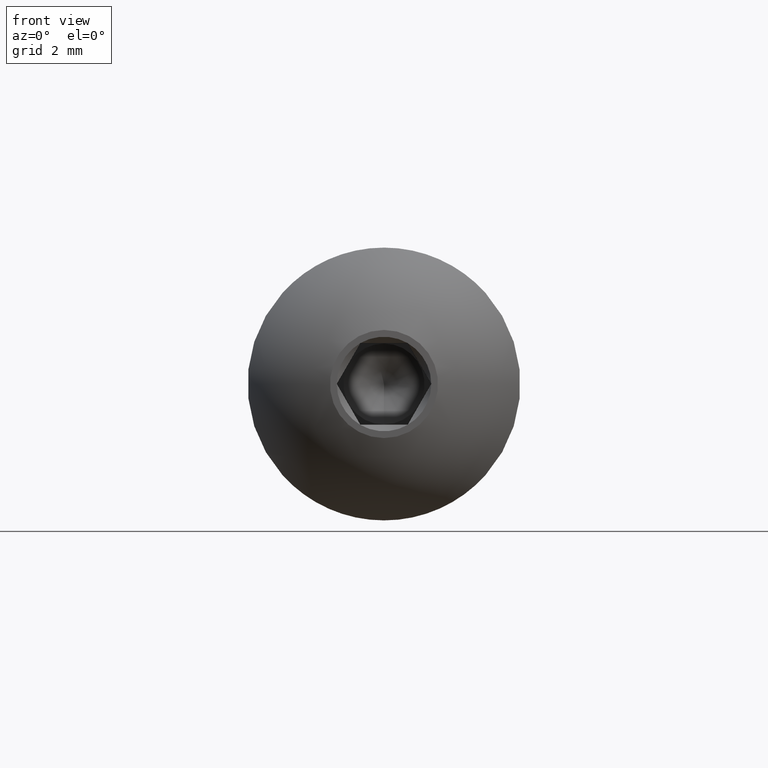
[diagram: clean part render]
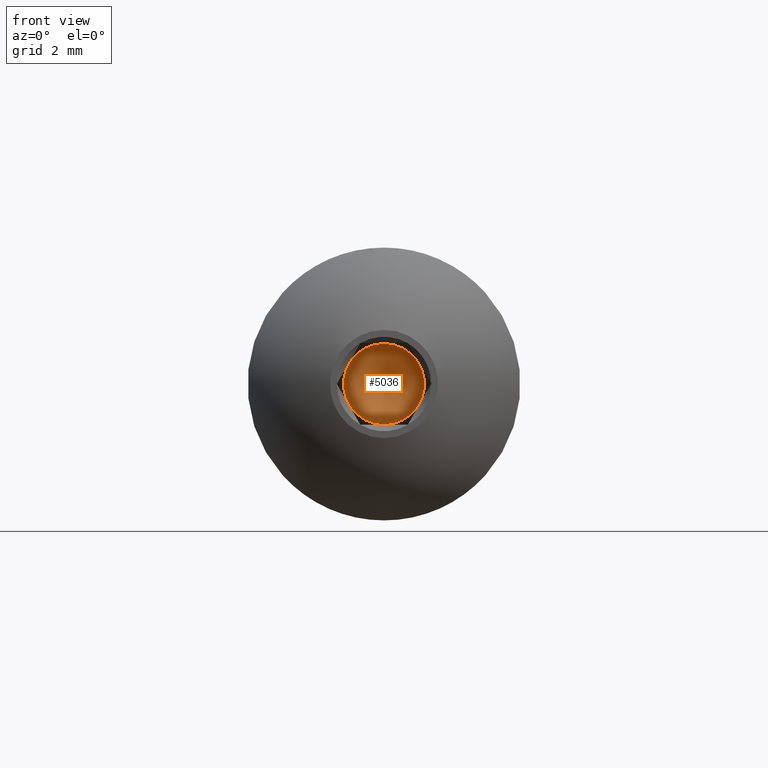
[diagram: same view with one face highlighted and labeled with its STEP entity id]
A machine part, front view. The second image highlights one B-rep face of the part: STEP entity #5036.
In plain terms, the highlighted conical surface has half-angle 59 deg.
Its self-contained STEP definition (entity closure, byte-faithful):
#1166 = CARTESIAN_POINT ( 'NONE',  ( 0.0000000000000000000, 1.749999999999999800, -1.484999999999999700 ) ) ;
#1998 = DIRECTION ( 'NONE',  ( 0.0000000000000000000, 0.0000000000000000000, -1.000000000000000000 ) ) ;
#2307 = EDGE_CURVE ( 'NONE', #10165, #10165, #9347, .T. ) ;
#5036 = ADVANCED_FACE ( 'NONE', ( #9493 ), #9013, .F. ) ;
#6063 = AXIS2_PLACEMENT_3D ( 'NONE', #6920, #11947, #1998 ) ;
#6920 = CARTESIAN_POINT ( 'NONE',  ( 0.0000000000000000000, 1.749999999999999800, 0.0000000000000000000 ) ) ;
#9013 = CONICAL_SURFACE ( 'NONE', #14484, 1.484999999999999400, 1.029744258676657400 ) ;
#9039 = DIRECTION ( 'NONE',  ( 0.0000000000000000000, 0.0000000000000000000, -1.000000000000000000 ) ) ;
#9347 = CIRCLE ( 'NONE', #6063, 1.484999999999999700 ) ;
#9493 = FACE_OUTER_BOUND ( 'NONE', #15658, .T. ) ;
#10165 = VERTEX_POINT ( 'NONE', #1166 ) ;
#11369 = CARTESIAN_POINT ( 'NONE',  ( 0.0000000000000000000, 1.749999999999999800, 0.0000000000000000000 ) ) ;
#11947 = DIRECTION ( 'NONE',  ( -0.0000000000000000000, 1.000000000000000000, -0.0000000000000000000 ) ) ;
#14484 = AXIS2_PLACEMENT_3D ( 'NONE', #11369, #15103, #9039 ) ;
#15103 = DIRECTION ( 'NONE',  ( -0.0000000000000000000, -1.000000000000000000, -0.0000000000000000000 ) ) ;
#15658 = EDGE_LOOP ( 'NONE', ( #15898 ) ) ;
#15898 = ORIENTED_EDGE ( 'NONE', *, *, #2307, .F. ) ;